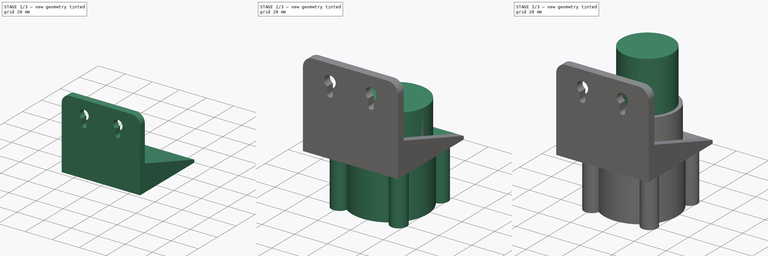
[diagram: build sequence overview — one tinted view per stage of 3, left to right]
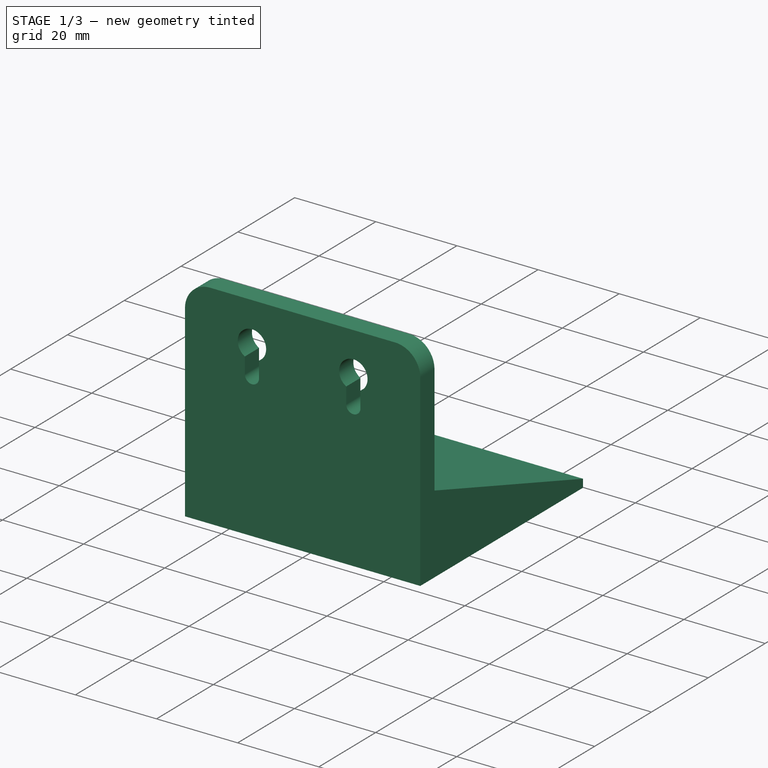
[diagram: stage 1 of 3 — iso view after this stage's code; geometry added in this stage tinted green]
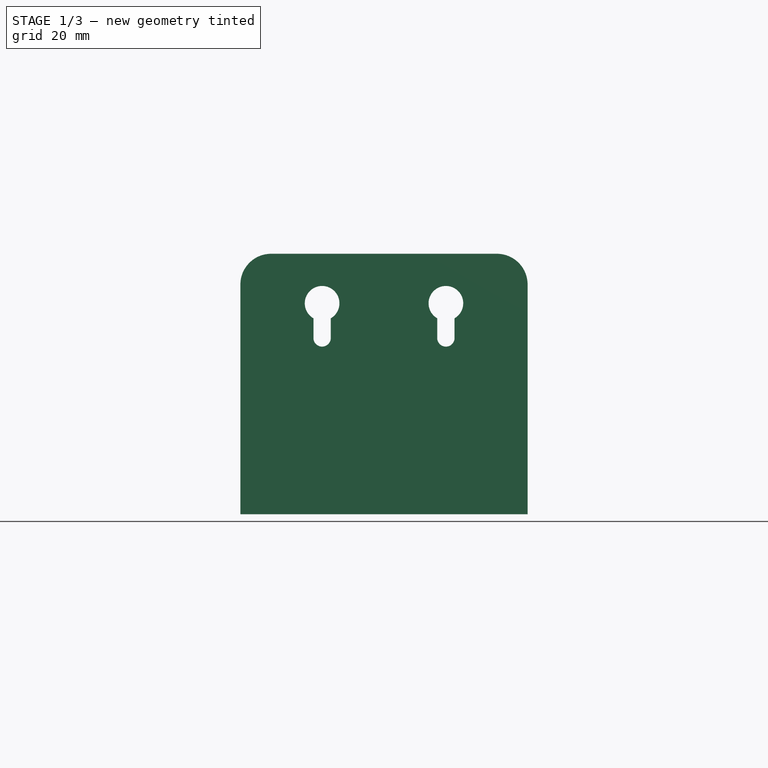
[diagram: stage 1 of 3 — front view after this stage's code; geometry added in this stage tinted green]
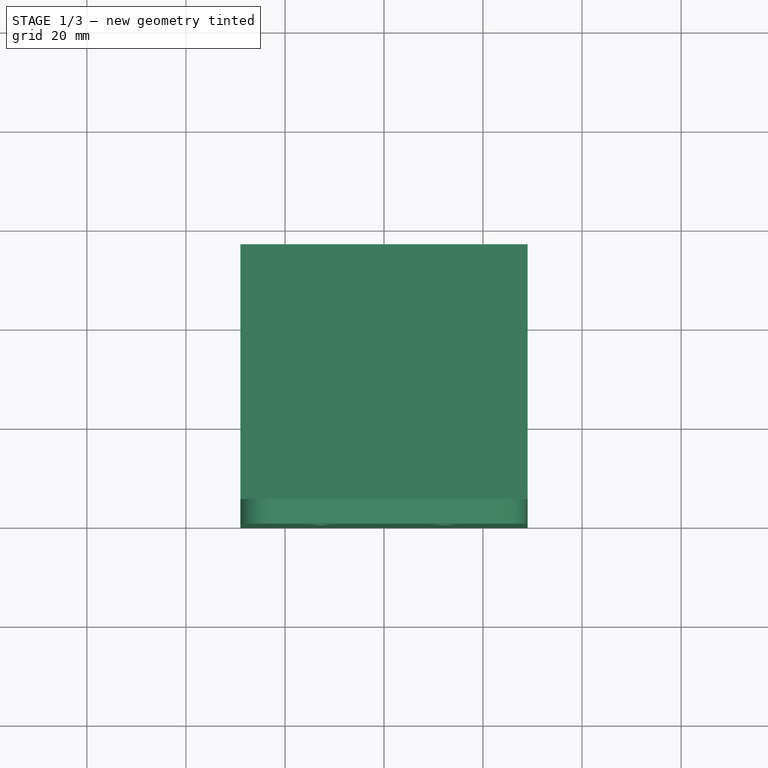
[diagram: stage 1 of 3 — top view after this stage's code; geometry added in this stage tinted green]
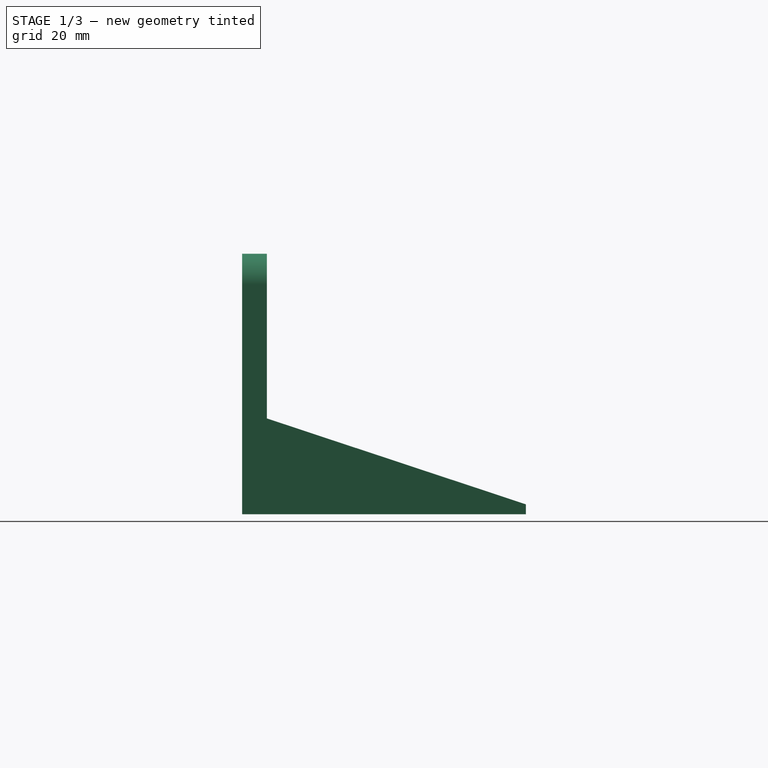
[diagram: stage 1 of 3 — right view after this stage's code; geometry added in this stage tinted green]
FCSTD DOCUMENT  (FreeCAD 0.20R29177 (Git))
Label: Pump
License: All rights reserved
LicenseURL: http://en.wikipedia.org/wiki/All_rights_reserved
objects: Sketcher::SketchObject×7, PartDesign::Pad×6, PartDesign::Pocket×1, PartDesign::Body×1
note: 22 computed .brp shape members not serialized (recipe doc carries the construction recipe); baked Part::Feature solids carry a one-line shape summary decoded from their .brp

FEATURE [Sketcher::SketchObject] Sketch
  FullyConstrained = true
  MapMode = 5
  Placement = pos=(0,0,0) rot=(1,0,0;1.5708rad)
  Support = -> [XZ_Plane]
  sketch-geometry (20):
    g0: LineSegment StartX=29 StartY=0 StartZ=0 EndX=29 EndY=46.4 EndZ=0
    g1: LineSegment StartX=22.8 StartY=52.6 StartZ=0 EndX=-22.8 EndY=52.6 EndZ=0
    g2: ArcOfCircle CenterX=-22.8 CenterY=46.4 CenterZ=0 NormalX=0 NormalY=0 NormalZ=1 AngleXU=0 Radius=6.2 StartAngle=1.5708 EndAngle=3.14159
    g3: ArcOfCircle CenterX=22.8 CenterY=46.4 CenterZ=0 NormalX=0 NormalY=0 NormalZ=1 AngleXU=0 Radius=6.2 StartAngle=1e-16 EndAngle=1.5708
    g4: ArcOfCircle CenterX=-12.5 CenterY=42.6 CenterZ=0 NormalX=0 NormalY=0 NormalZ=1 AngleXU=0 Radius=3.5 StartAngle=5.23599 EndAngle=10.472
    g5: ArcOfCircle CenterX=12.5 CenterY=42.6 CenterZ=0 NormalX=0 NormalY=0 NormalZ=1 AngleXU=0 Radius=3.5 StartAngle=5.23599 EndAngle=10.472
    g6: ArcOfCircle CenterX=-12.5 CenterY=35.6 CenterZ=0 NormalX=0 NormalY=0 NormalZ=1 AngleXU=0 Radius=1.75 StartAngle=3.14159 EndAngle=6.28319
    g7: LineSegment StartX=-14.25 StartY=39.5689 StartZ=0 EndX=-14.25 EndY=35.6 EndZ=0
    g8: LineSegment StartX=-10.75 StartY=35.6 StartZ=0 EndX=-10.75 EndY=39.5689 EndZ=0
    g9: ArcOfCircle CenterX=12.5 CenterY=35.6 CenterZ=0 NormalX=0 NormalY=0 NormalZ=1 AngleXU=0 Radius=1.75 StartAngle=3.14159 EndAngle=6.28319
    g10: LineSegment StartX=10.75 StartY=39.5689 StartZ=0 EndX=10.75 EndY=35.6 EndZ=0
    g11: LineSegment StartX=14.25 StartY=35.6 StartZ=0 EndX=14.25 EndY=39.5689 EndZ=0
    g12: LineSegment StartX=-14.25 StartY=39.5689 StartZ=0 EndX=-10.75 EndY=39.5689 EndZ=0
    g13: LineSegment StartX=10.75 StartY=39.5689 StartZ=0 EndX=14.25 EndY=39.5689 EndZ=0
    g14: LineSegment StartX=12.5 StartY=35.6 StartZ=0 EndX=29 EndY=0 EndZ=0
    g15: LineSegment StartX=-29 StartY=46.4 StartZ=0 EndX=-29 EndY=0 EndZ=0
    g16: LineSegment StartX=-29 StartY=0 StartZ=0 EndX=29 EndY=0 EndZ=0
    g17: LineSegment StartX=-12.5 StartY=35.6 StartZ=0 EndX=-29 EndY=0 EndZ=0
    g18: LineSegment StartX=-12.5 StartY=35.6 StartZ=0 EndX=-1.8e-15 EndY=0 EndZ=0
    g19: LineSegment StartX=0 StartY=0 StartZ=0 EndX=12.5 EndY=35.6 EndZ=0
  constraints (53):
    c: Horizontal(g1)
    c: Vertical(g0)
    c: Tangent(g1,g2) = -1.5708
    c: Tangent(g1,g3) = -1.5708
    c: Tangent(g0,g3) = -1.5708
    c: Equal(g3,g2)
    c: DistanceX(g2,g3) = 45.6
    c: Tangent(g7,g6) = -1.5708
    c: Tangent(g6,g8) = -1.5708
    c: Vertical(g7)
    c: Tangent(g10,g9) = -1.5708
    c: Tangent(g9,g11) = -1.5708
    c: Vertical(g10)
    c: Horizontal(g4,g5)
    c: Equal(g4,g5)
    c: Equal(g9,g6)
    c: Horizontal(g6,g9)
    c: DistanceX(g4,g5) = 25
    c: Coincident(g4,g7)
    c: Coincident(g4,g8)
    c: Coincident(g5,g10)
    c: Coincident(g5,g11)
    c: Radius(g5) = 3.5
    c: DistanceX(g9,g9) = 3.5
    c: Vertical(g8)
    c: Vertical(g11)
    c: DistanceY(g6,g4) = 7
    c: Coincident(g12,g4)
    c: Coincident(g12,g4)
    c: Horizontal(g12)
    c: Coincident(g13,g5)
    c: Coincident(g13,g5)
    c: Horizontal(g13)
    c: Coincident(g14,g9)
    c: DistanceY(g5,g1) = 10
    c: Coincident(g15,g2)
    c: PointOnObject(g15,g-1)
    c: Coincident(g16,g15)
    c: Coincident(g16,g0)
    c: Horizontal(g16)
    c: Coincident(g14,g0)
    c: Coincident(g17,g6)
    c: Coincident(g17,g15)
    c: Vertical(g15)
    c: Equal(g17,g14)
    c: DistanceX(g16,g16) = 58
    c: DistanceY(g15,g1) = 52.6
    c: Coincident(g18,g6)
    c: Coincident(g18,g-1)
    c: Coincident(g19,g18)
    c: Coincident(g19,g9)
    c: Equal(g19,g18)
    c: Equal(g15,g0)
FEATURE [PartDesign::Pad] Pad
  Direction = (0,-1,2e-16)
  Length = 5
  Length2 = 10
  Placement = pos=(0,0,0) rot=(1,0,0;1.5708rad)
  Profile = -> Sketch
  ReferenceAxis = -> Sketch [N_Axis]
  Reversed = true
  Type = 0
  expr: Length = 57.3 - 52.3
FEATURE [Sketcher::SketchObject] Sketch001
  FullyConstrained = true
  MapMode = 5
  Placement = pos=(0,0,0) rot=(0.57735,0.57735,0.57735;2.0944rad)
  Support = -> [YZ_Plane]
  sketch-geometry (4):
    g0: LineSegment StartX=0 StartY=0 StartZ=0 EndX=57.3 EndY=0 EndZ=0
    g1: LineSegment StartX=57.3 StartY=0 StartZ=0 EndX=57.3 EndY=2 EndZ=0
    g2: LineSegment StartX=57.3 StartY=2 StartZ=0 EndX=0 EndY=21 EndZ=0
    g3: LineSegment StartX=0 StartY=21 StartZ=0 EndX=0 EndY=0 EndZ=0
  constraints (11):
    c: Coincident(g0,g1)
    c: Coincident(g1,g2)
    c: Coincident(g2,g3)
    c: Coincident(g3,g0)
    c: Horizontal(g0)
    c: Vertical(g1)
    c: Vertical(g3)
    c: Coincident(g0,g-1)
    c: DistanceY(g1,g1) = 2
    c: DistanceY(g3,g3) = 21
    c: DistanceX(g0,g0) = 57.3
FEATURE [PartDesign::Pad] Pad001
  BaseFeature = -> Pad
  Direction = (1,-2e-16,3e-16)
  Length = 58
  Length2 = 10
  Midplane = true
  Placement = pos=(0,0,0) rot=(1,0,0;1.5708rad)
  Profile = -> Sketch001
  ReferenceAxis = -> Sketch001 [N_Axis]
  Type = 0
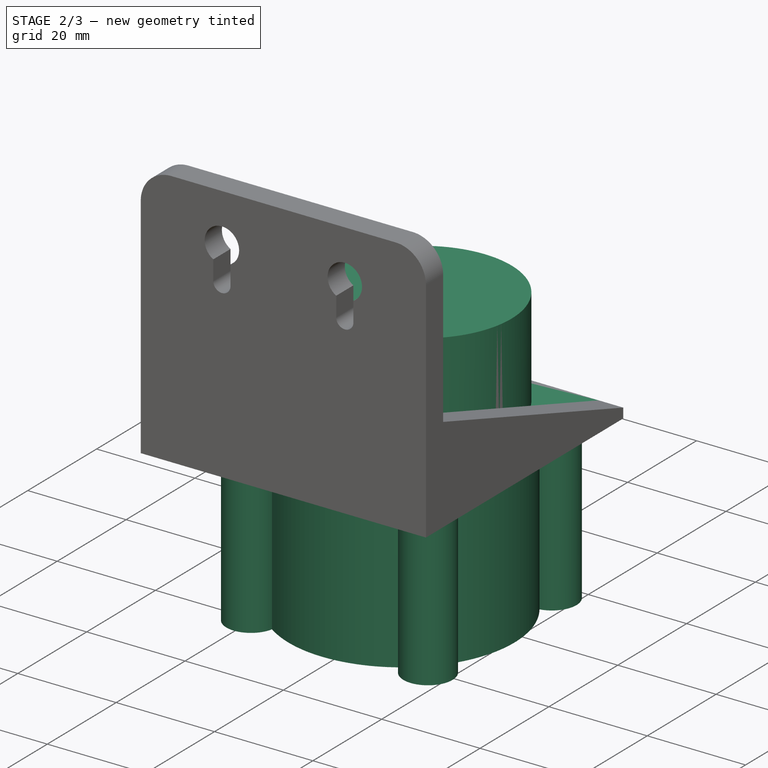
[diagram: stage 2 of 3 — iso view after this stage's code; geometry added in this stage tinted green]
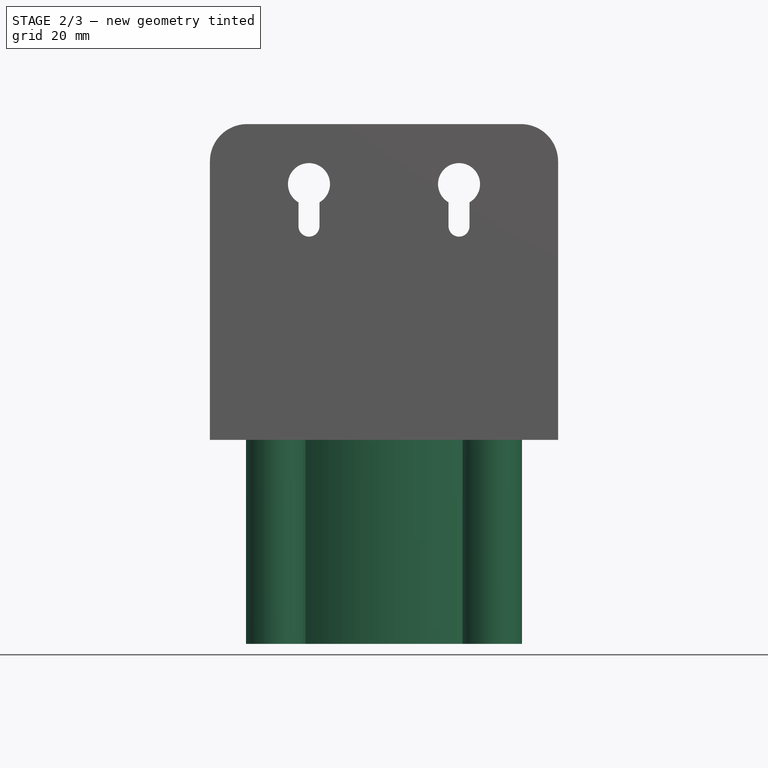
[diagram: stage 2 of 3 — front view after this stage's code; geometry added in this stage tinted green]
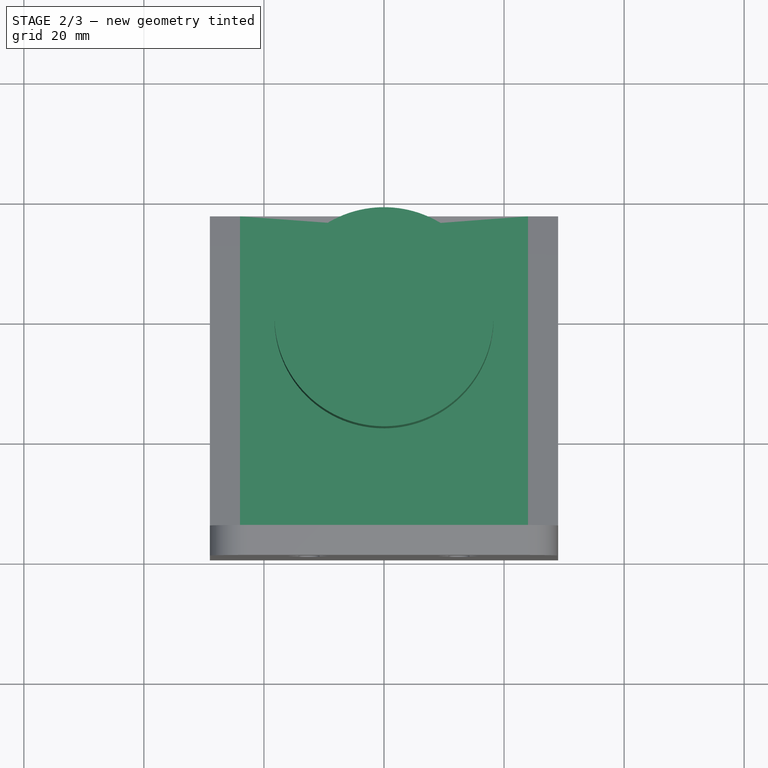
[diagram: stage 2 of 3 — top view after this stage's code; geometry added in this stage tinted green]
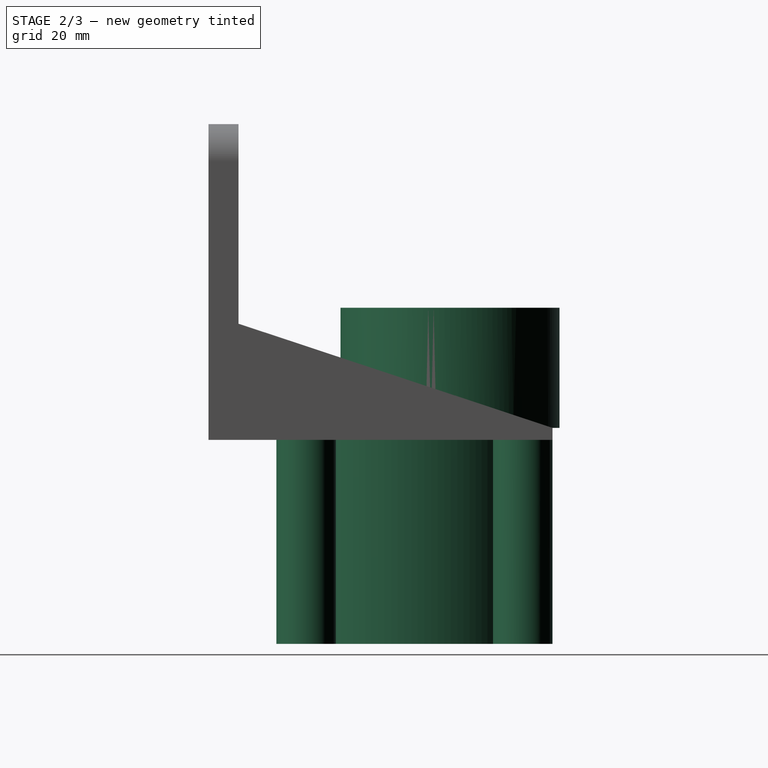
[diagram: stage 2 of 3 — right view after this stage's code; geometry added in this stage tinted green]
FEATURE [Sketcher::SketchObject] Sketch002
  ExternalGeometry = -> [Pad001]
  FullyConstrained = false
  MapMode = 5
  Placement = pos=(0,0,0) rot=(0.57735,0.57735,0.57735;2.0944rad)
  Support = -> [YZ_Plane]
  sketch-geometry (4):
    g0: LineSegment StartX=5 StartY=31.4704 StartZ=0 EndX=57.3 EndY=31.4704 EndZ=0
    g1: LineSegment StartX=57.3 StartY=31.4704 StartZ=0 EndX=57.3 EndY=2 EndZ=0
    g2: LineSegment StartX=57.3 StartY=2 StartZ=0 EndX=5 EndY=2 EndZ=0
    g3: LineSegment StartX=5 StartY=2 StartZ=0 EndX=5 EndY=31.4704 EndZ=0
  constraints (10):
    c: Coincident(g0,g1)
    c: Coincident(g1,g2)
    c: Coincident(g2,g3)
    c: Coincident(g3,g0)
    c: Horizontal(g0)
    c: Horizontal(g2)
    c: Vertical(g1)
    c: Vertical(g3)
    c: PointOnObject(g0,g-3)
    c: Coincident(g1,g-4)
FEATURE [PartDesign::Pocket] Pocket
  BaseFeature = -> Pad001
  Direction = (-1,2e-16,-3e-16)
  Length = 48
  Length2 = 5
  Midplane = true
  Placement = pos=(0,0,0) rot=(1,0,0;1.5708rad)
  Profile = -> Sketch002
  ReferenceAxis = -> Sketch002 [N_Axis]
  Type = 0
FEATURE [Sketcher::SketchObject] Sketch003
  ExternalGeometry = -> [Pad001]
  FullyConstrained = false
  MapMode = 5
  Support = -> [XY_Plane]
  sketch-geometry (13):
    g0: LineSegment StartX=18 StartY=16.3 StartZ=0 EndX=18 EndY=52.3 EndZ=0
    g1: LineSegment StartX=18 StartY=52.3 StartZ=0 EndX=-18 EndY=52.3 EndZ=0
    g2: LineSegment StartX=-18 StartY=52.3 StartZ=0 EndX=-18 EndY=16.3 EndZ=0
    g3: LineSegment StartX=-18 StartY=16.3 StartZ=0 EndX=18 EndY=16.3 EndZ=0
    g4: GeomPoint X=0 Y=34.3 Z=0
    g5: ArcOfCircle CenterX=-18 CenterY=52.3 CenterZ=0 NormalX=0 NormalY=0 NormalZ=1 AngleXU=0 Radius=5 StartAngle=0.184134 EndAngle=4.52826
    g6: ArcOfCircle CenterX=-18 CenterY=16.3 CenterZ=0 NormalX=0 NormalY=0 NormalZ=1 AngleXU=0 Radius=5 StartAngle=1.75493 EndAngle=6.09905
    g7: ArcOfCircle CenterX=18 CenterY=16.3 CenterZ=0 NormalX=0 NormalY=0 NormalZ=1 AngleXU=0 Radius=5 StartAngle=3.32573 EndAngle=7.66985
    g8: ArcOfCircle CenterX=0 CenterY=34.3 CenterZ=0 NormalX=0 NormalY=0 NormalZ=1 AngleXU=0 Radius=23 StartAngle=2.53643 EndAngle=3.74675
    g9: ArcOfCircle CenterX=18 CenterY=52.3 CenterZ=0 NormalX=0 NormalY=0 NormalZ=1 AngleXU=0 Radius=5 StartAngle=4.89652 EndAngle=9.24064
    g10: ArcOfCircle CenterX=0 CenterY=34.3 CenterZ=0 NormalX=0 NormalY=0 NormalZ=1 AngleXU=0 Radius=23 StartAngle=0.965638 EndAngle=2.17595
    g11: ArcOfCircle CenterX=0 CenterY=34.3 CenterZ=0 NormalX=0 NormalY=0 NormalZ=1 AngleXU=0 Radius=23 StartAngle=5.67803 EndAngle=6.88834
    g12: ArcOfCircle CenterX=0 CenterY=34.3 CenterZ=0 NormalX=0 NormalY=0 NormalZ=1 AngleXU=0 Radius=23 StartAngle=4.10723 EndAngle=5.31755
  constraints (32):
    c: Coincident(g0,g1)
    c: Coincident(g1,g2)
    c: Coincident(g2,g3)
    c: Coincident(g3,g0)
    c: Horizontal(g1)
    c: Horizontal(g3)
    c: Vertical(g0)
    c: Vertical(g2)
    c: Symmetric(g1,g0,g4)
    c: Equal(g1,g0)
    c: Coincident(g5,g1)
    c: Coincident(g6,g2)
    c: Coincident(g7,g0)
    c: Equal(g7,g6)
    c: Coincident(g10,g5)
    c: Coincident(g5,g8)
    c: PointOnObject(g9,g8)
    c: Coincident(g11,g9)
    c: PointOnObject(g10,g9)
    c: Equal(g8,g11)
    c: Coincident(g12,g7)
    c: Coincident(g8,g11)
    c: Coincident(g7,g11)
    c: Equal(g8,g12)
    c: Coincident(g12,g6)
    c: Coincident(g8,g12)
    c: Coincident(g8,g6)
    c: Equal(g5,g9)
    c: Equal(g9,g7)
    c: Radius(g9) = 5
    c: Radius(g11) = 23
    c: Equal(g11,g10)
FEATURE [PartDesign::Pad] Pad002
  BaseFeature = -> Pocket
  Direction = (0,0,1)
  Length = 34
  Length2 = 10
  Placement = pos=(0,0,0) rot=(1,0,0;1.5708rad)
  Profile = -> Sketch003
  ReferenceAxis = -> Sketch003 [N_Axis]
  Reversed = true
  Type = 0
FEATURE [Sketcher::SketchObject] Sketch004
  FullyConstrained = false
  MapMode = 5
  Placement = pos=(-6e-16,1.3e-15,2) rot=(0,0,1;3.14159rad)
  Support = -> [Pad002]
  sketch-geometry (1):
    g0: Circle CenterX=0 CenterY=-40.2244 CenterZ=0 NormalX=0 NormalY=0 NormalZ=1 AngleXU=0 Radius=18.25
  constraints (2):
    c: PointOnObject(g0,g-2)
    c: Diameter(g0) = 36.5
FEATURE [PartDesign::Pad] Pad003
  BaseFeature = -> Pad002
  Direction = (-3e-16,2e-16,1)
  Length = 20
  Length2 = 10
  Placement = pos=(0,0,0) rot=(1,0,0;1.5708rad)
  Profile = -> Sketch004
  ReferenceAxis = -> Sketch004 [N_Axis]
  Type = 0
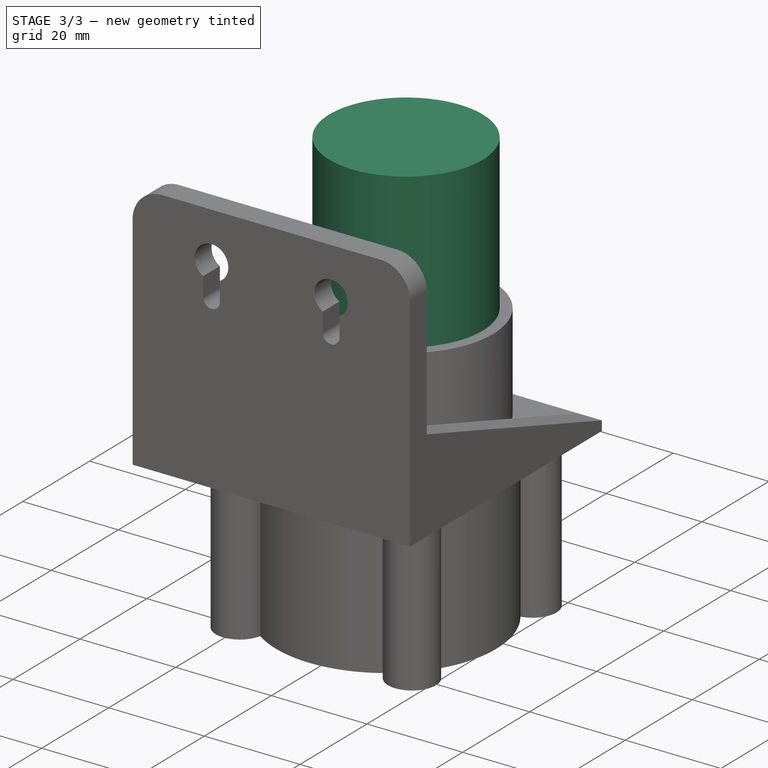
[diagram: stage 3 of 3 — iso view after this stage's code; geometry added in this stage tinted green]
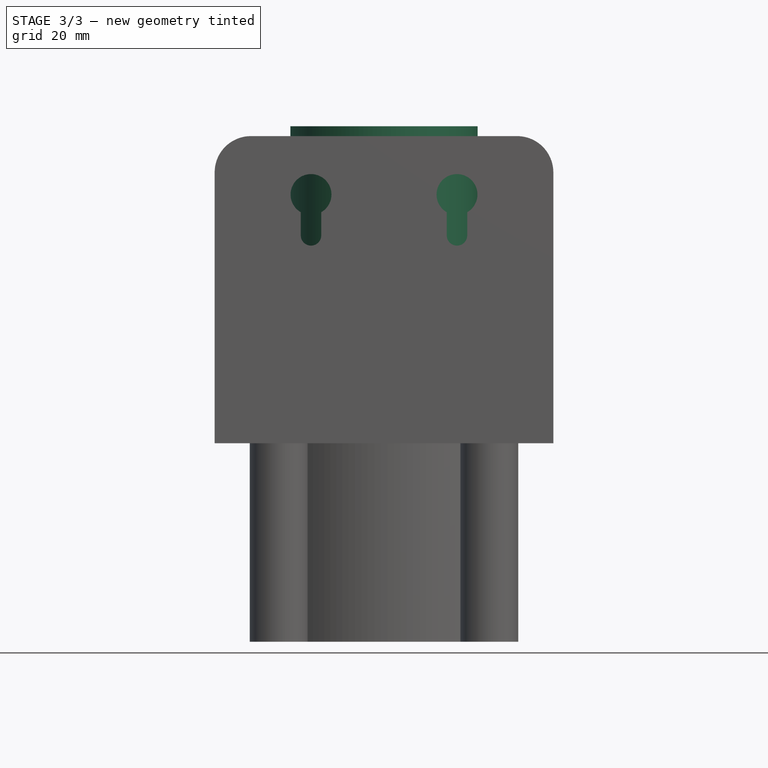
[diagram: stage 3 of 3 — front view after this stage's code; geometry added in this stage tinted green]
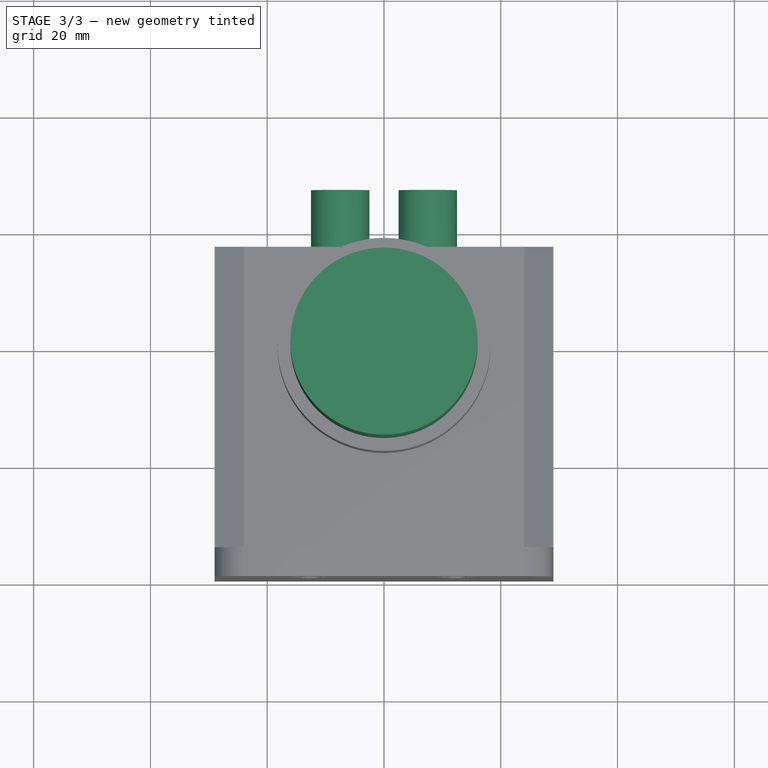
[diagram: stage 3 of 3 — top view after this stage's code; geometry added in this stage tinted green]
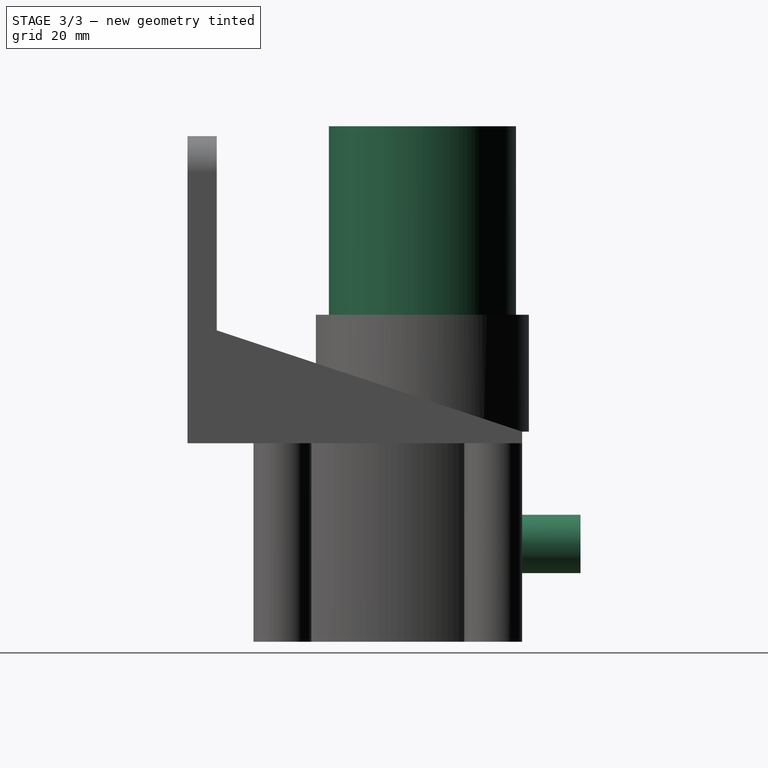
[diagram: stage 3 of 3 — right view after this stage's code; geometry added in this stage tinted green]
FEATURE [Sketcher::SketchObject] Sketch005
  ExternalGeometry = -> [Pad003]
  FullyConstrained = false
  MapMode = 5
  Placement = pos=(-5.9e-15,9.7e-15,22) rot=(0,0,1;3.14159rad)
  Support = -> [Pad003]
  sketch-geometry (1):
    g0: Circle CenterX=0 CenterY=-40.2244 CenterZ=0 NormalX=0 NormalY=0 NormalZ=1 AngleXU=0 Radius=16.0298
  constraints (1):
    c: Coincident(g0,g-3)
FEATURE [PartDesign::Pad] Pad004
  BaseFeature = -> Pad003
  Direction = (-3e-16,2e-16,1)
  Length = 32.3
  Length2 = 10
  Placement = pos=(0,0,0) rot=(1,0,0;1.5708rad)
  Profile = -> Sketch005
  ReferenceAxis = -> Sketch005 [N_Axis]
  Type = 0
FEATURE [Sketcher::SketchObject] Sketch006
  FullyConstrained = false
  MapMode = 5
  Placement = pos=(1.26e-14,57.3,-3.79e-14) rot=(-1,0,0;1.5708rad)
  Support = -> [Pad004]
  sketch-geometry (5):
    g0: LineSegment StartX=-7.5 StartY=17.2414 StartZ=0 EndX=7.5 EndY=17.2414 EndZ=0
    g1: Circle CenterX=-7.5 CenterY=17.2414 CenterZ=0 NormalX=0 NormalY=0 NormalZ=1 AngleXU=0 Radius=5
    g2: Circle CenterX=7.5 CenterY=17.2414 CenterZ=0 NormalX=0 NormalY=0 NormalZ=1 AngleXU=0 Radius=5
    g3: LineSegment StartX=-7.5 StartY=17.2414 StartZ=0 EndX=0 EndY=0 EndZ=0
    g4: LineSegment StartX=0 StartY=0 StartZ=0 EndX=7.5 EndY=17.2414 EndZ=0
  constraints (9):
    c: Horizontal(g0)
    c: Coincident(g1,g0)
    c: Coincident(g2,g0)
    c: Coincident(g3,g1)
    c: Coincident(g3,g-1)
    c: Coincident(g4,g3)
    c: Coincident(g4,g2)
    c: Equal(g1,g2)
    c: Equal(g3,g4)
FEATURE [PartDesign::Pad] Pad005
  BaseFeature = -> Pad004
  Direction = (2e-16,1,-2e-16)
  Length = 20
  Length2 = 10
  Midplane = true
  Placement = pos=(0,0,0) rot=(1,0,0;1.5708rad)
  Profile = -> Sketch006
  ReferenceAxis = -> Sketch006 [N_Axis]
  Type = 0
FEATURE [PartDesign::Body] Body
  Group = -> [Sketch,Pad,Sketch001,Pad001,Sketch002,Pocket,Sketch003,Pad002,Sketch004,Pad003,Sketch005,Pad004,Sketch006,Pad005]
  Origin = -> Origin
  Tip = -> Pad005
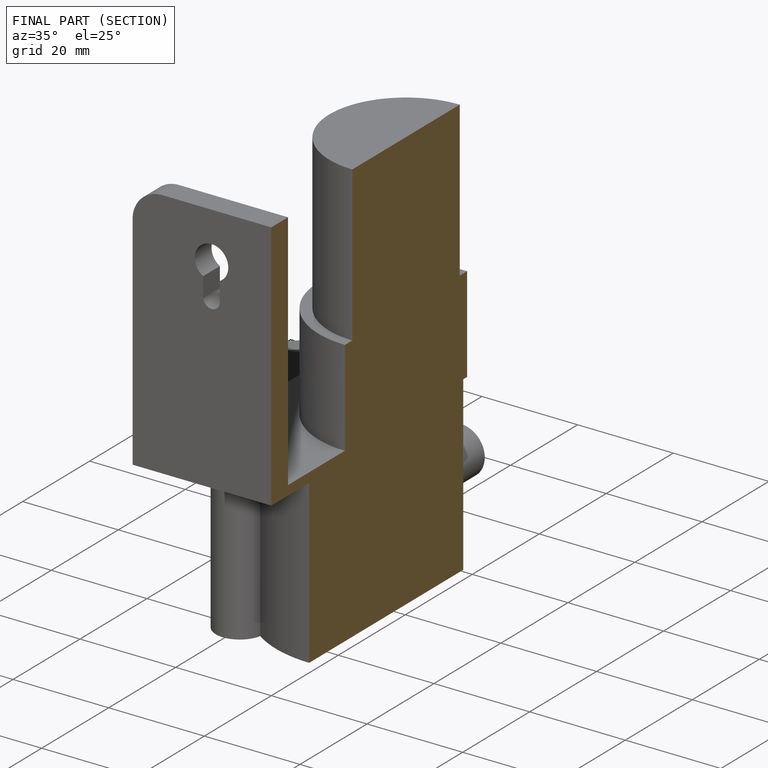
[diagram: finished part — half-section view (interior)]
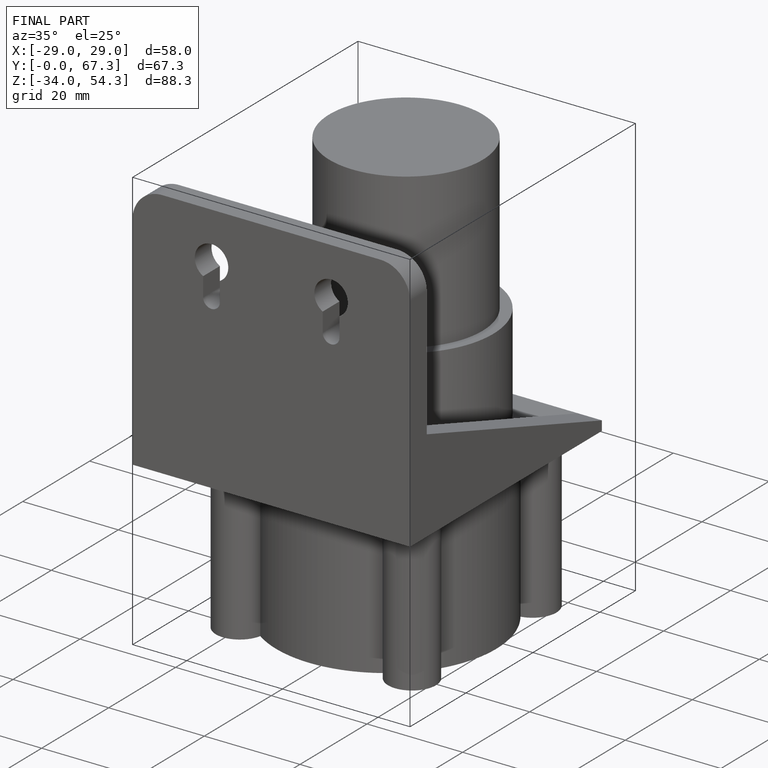
[diagram: finished part — iso view with bounding-box wireframe]
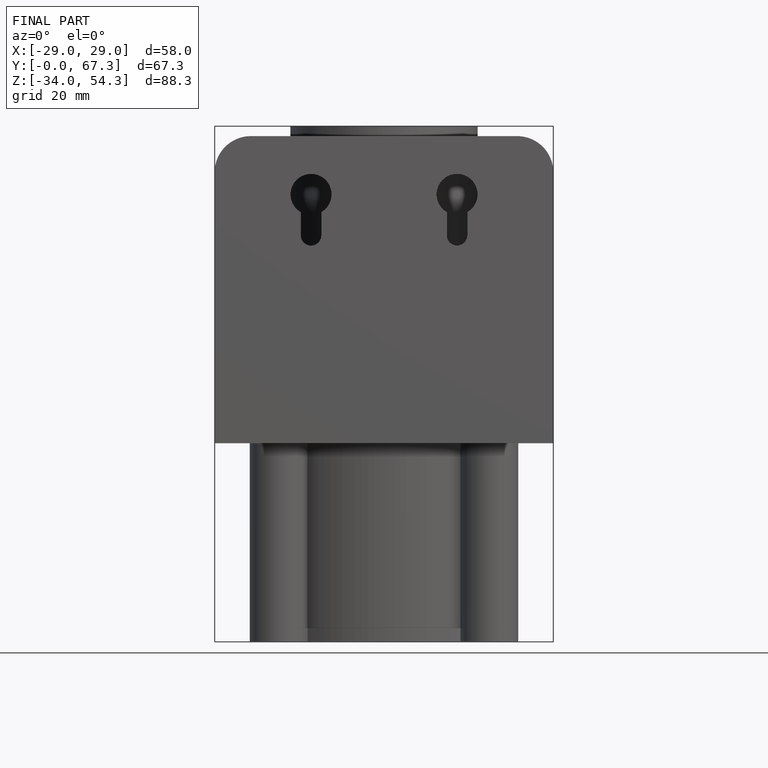
[diagram: finished part — front view with bounding-box wireframe]
